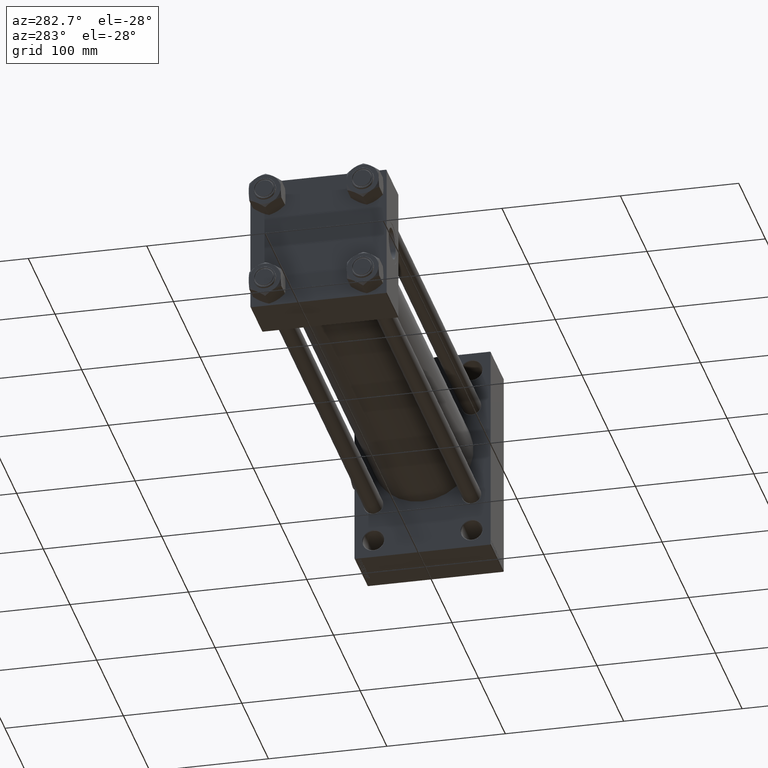
[diagram: clean part render]
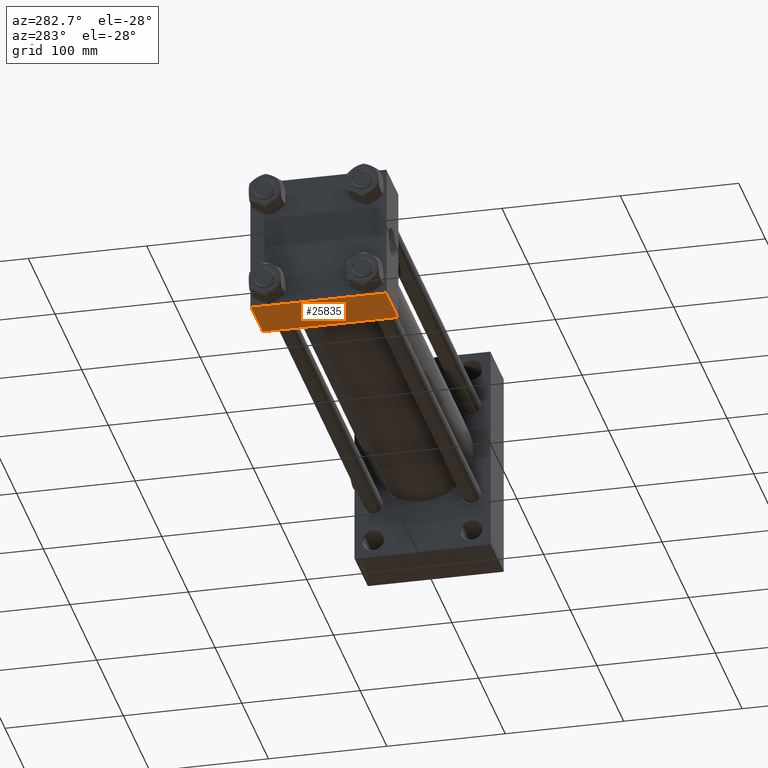
[diagram: same view with one face highlighted and labeled with its STEP entity id]
A machine part, auxiliary view. The second image highlights one B-rep face of the part: STEP entity #25835.
In plain terms, the highlighted planar face has unit normal (0, 0, -1).
Its self-contained STEP definition (entity closure, byte-faithful):
#1090 = VECTOR ( 'NONE', #2935, 1000.000000000000000 ) ;
#2935 = DIRECTION ( 'NONE',  ( 0.000000000000000000, -1.000000000000000000, -1.206764157201257291E-16 ) ) ;
#5205 = CARTESIAN_POINT ( 'NONE',  ( 44.00000000000000000, -57.00000000000001421, -57.50000000000000711 ) ) ;
#5435 = LINE ( 'NONE', #39562, #39873 ) ;
#7098 = DIRECTION ( 'NONE',  ( -1.000000000000000000, 0.000000000000000000, 0.000000000000000000 ) ) ;
#7257 = VECTOR ( 'NONE', #7098, 1000.000000000000000 ) ;
#7527 = DIRECTION ( 'NONE',  ( 0.000000000000000000, 1.000000000000000000, 1.206764157201257291E-16 ) ) ;
#10185 = VERTEX_POINT ( 'NONE', #5205 ) ;
#10286 = ORIENTED_EDGE ( 'NONE', *, *, #31118, .F. ) ;
#15047 = PLANE ( 'NONE',  #20936 ) ;
#16198 = EDGE_CURVE ( 'NONE', #10185, #20805, #26164, .T. ) ;
#17202 = VERTEX_POINT ( 'NONE', #22006 ) ;
#19325 = DIRECTION ( 'NONE',  ( 0.000000000000000000, 1.206764157201257291E-16, -1.000000000000000000 ) ) ;
#20747 = DIRECTION ( 'NONE',  ( 1.000000000000000000, 0.000000000000000000, 0.000000000000000000 ) ) ;
#20805 = VERTEX_POINT ( 'NONE', #40787 ) ;
#20936 = AXIS2_PLACEMENT_3D ( 'NONE', #29856, #19325, #7527 ) ;
#22006 = CARTESIAN_POINT ( 'NONE',  ( 44.00000000000000000, 57.00000000000002842, -57.49999999999999289 ) ) ;
#25835 = ADVANCED_FACE ( 'NONE', ( #38123 ), #15047, .T. ) ;
#26164 = LINE ( 'NONE', #41462, #7257 ) ;
#29856 = CARTESIAN_POINT ( 'NONE',  ( 44.00000000000000000, 57.50000000000000000, -57.49999999999999289 ) ) ;
#31118 = EDGE_CURVE ( 'NONE', #34707, #20805, #44826, .T. ) ;
#31975 = CARTESIAN_POINT ( 'NONE',  ( 0.000000000000000000, 57.00000000000002842, -57.49999999999999289 ) ) ;
#32469 = ORIENTED_EDGE ( 'NONE', *, *, #32561, .T. ) ;
#32560 = DIRECTION ( 'NONE',  ( 0.000000000000000000, -1.000000000000000000, -1.206764157201257291E-16 ) ) ;
#32561 = EDGE_CURVE ( 'NONE', #17202, #10185, #48373, .T. ) ;
#34707 = VERTEX_POINT ( 'NONE', #31975 ) ;
#38123 = FACE_OUTER_BOUND ( 'NONE', #40068, .T. ) ;
#39562 = CARTESIAN_POINT ( 'NONE',  ( 44.00000000000000000, 57.00000000000002842, -57.49999999999999289 ) ) ;
#39873 = VECTOR ( 'NONE', #20747, 1000.000000000000000 ) ;
#40042 = ORIENTED_EDGE ( 'NONE', *, *, #16198, .T. ) ;
#40068 = EDGE_LOOP ( 'NONE', ( #10286, #44898, #32469, #40042 ) ) ;
#40787 = CARTESIAN_POINT ( 'NONE',  ( 0.000000000000000000, -57.00000000000001421, -57.50000000000000711 ) ) ;
#41462 = CARTESIAN_POINT ( 'NONE',  ( 0.000000000000000000, -57.00000000000001421, -57.50000000000000711 ) ) ;
#44569 = EDGE_CURVE ( 'NONE', #34707, #17202, #5435, .T. ) ;
#44826 = LINE ( 'NONE', #49101, #1090 ) ;
#44898 = ORIENTED_EDGE ( 'NONE', *, *, #44569, .T. ) ;
#47610 = VECTOR ( 'NONE', #32560, 1000.000000000000000 ) ;
#47878 = CARTESIAN_POINT ( 'NONE',  ( 44.00000000000000000, 57.50000000000000000, -57.49999999999999289 ) ) ;
#48373 = LINE ( 'NONE', #47878, #47610 ) ;
#49101 = CARTESIAN_POINT ( 'NONE',  ( 0.000000000000000000, 57.50000000000000000, -57.49999999999999289 ) ) ;